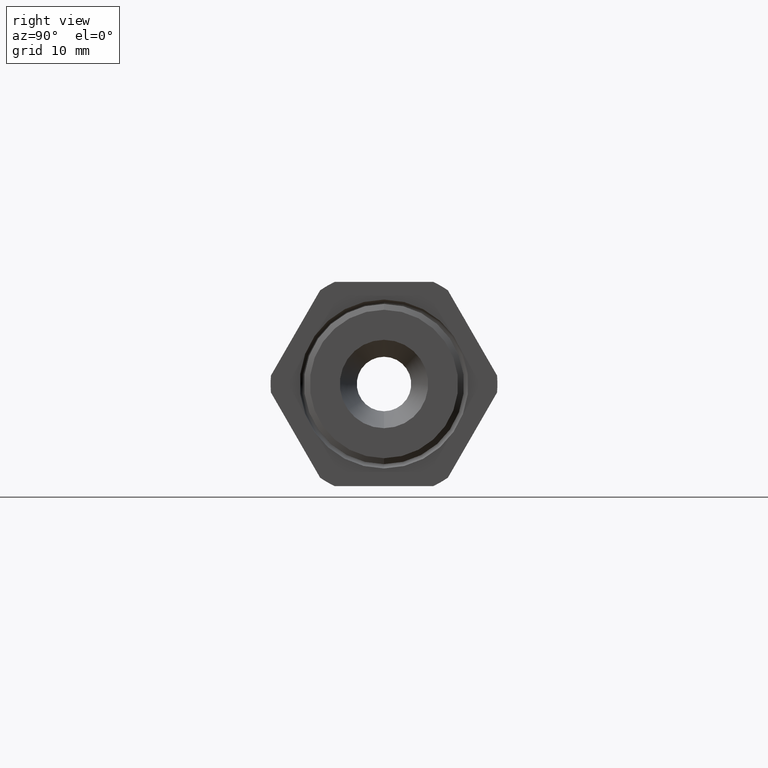
[diagram: clean part render]
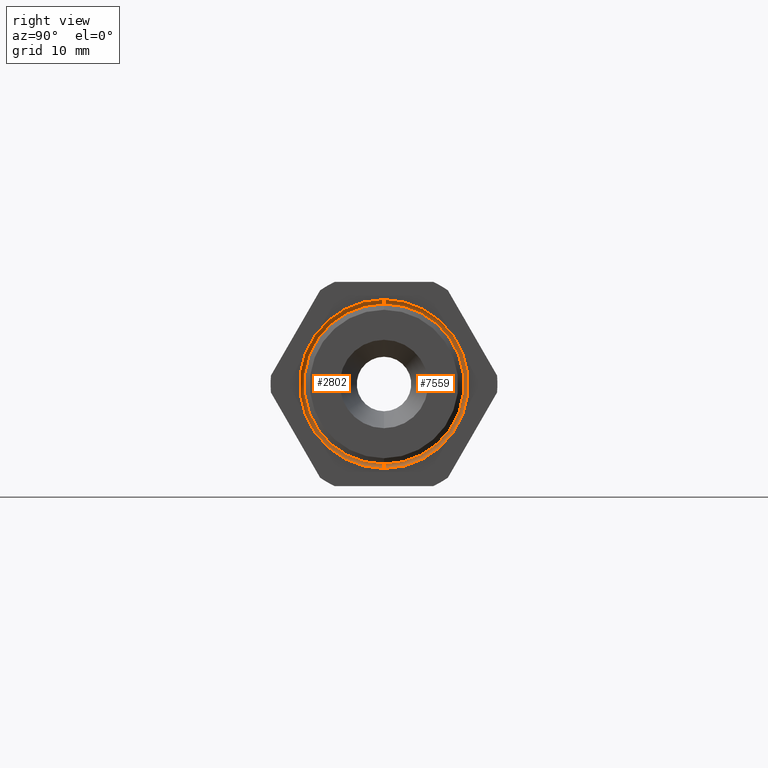
[diagram: same view with one multi-face feature highlighted, each face labeled with its STEP entity id]
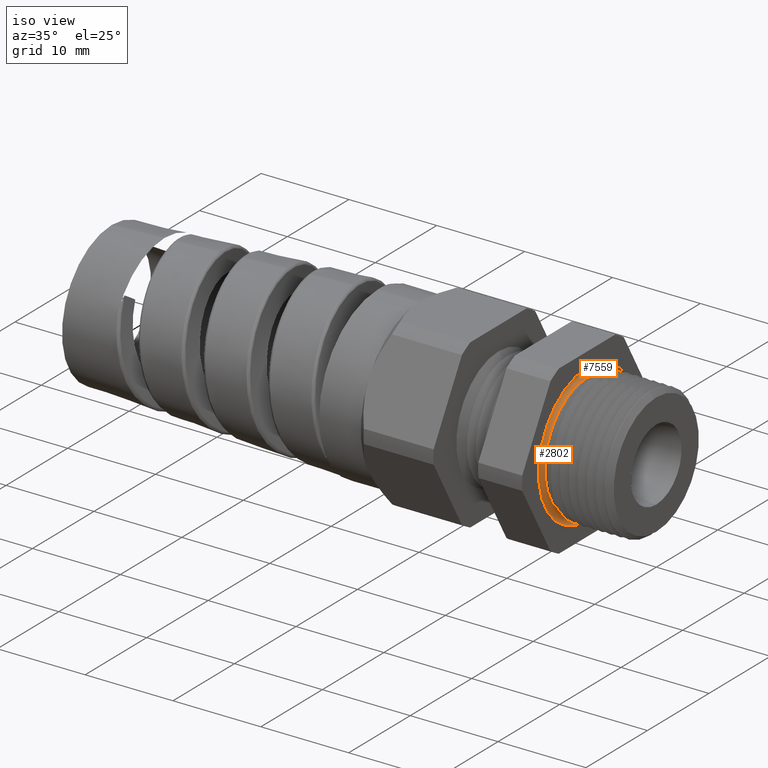
[diagram: same view with one multi-face feature highlighted, each face labeled with its STEP entity id]
A machine part, right view. The highlighted faces form ONE feature: a constant-radius fillet chain: 2 tangent blend faces with common blend radius 0.508 mm. The faces share edges in the B-rep.
A second angle (iso view) of the same feature is appended — it is thin or edge-on in the first view.
Their STEP definitions:
[1] entity #2802 (Torus):
#1498 = DIRECTION ( 'NONE',  ( 0.0000000000000000000, 0.0000000000000000000, -1.000000000000000000 ) ) ;
#1499 = DIRECTION ( 'NONE',  ( 0.0000000000000000000, -1.000000000000000000, 0.0000000000000000000 ) ) ;
#1500 = CARTESIAN_POINT ( 'NONE',  ( -0.3099999999999998300, 0.0000000000000000000, -0.2899999999999999800 ) ) ;
#1501 = AXIS2_PLACEMENT_3D ( 'NONE', #1500, #1499, #1498 ) ;
#1502 = CIRCLE ( 'NONE', #1501, 0.01999999999999999000 ) ;
#1540 = DIRECTION ( 'NONE',  ( 0.0000000000000000000, 0.0000000000000000000, -1.000000000000000000 ) ) ;
#1541 = DIRECTION ( 'NONE',  ( 1.000000000000000000, 0.0000000000000000000, 0.0000000000000000000 ) ) ;
#1542 = CARTESIAN_POINT ( 'NONE',  ( -0.3099999999999998300, 0.0000000000000000000, 0.0000000000000000000 ) ) ;
#1543 = AXIS2_PLACEMENT_3D ( 'NONE', #1542, #1541, #1540 ) ;
#1545 = TOROIDAL_SURFACE ( 'NONE', #1543, 0.2899999999999999800, 0.02000000000000000700 ) ;
#1546 = FACE_OUTER_BOUND ( 'NONE', #2801, .T. ) ;
#1589 = DIRECTION ( 'NONE',  ( 0.0000000000000000000, 0.0000000000000000000, -1.000000000000000000 ) ) ;
#1590 = DIRECTION ( 'NONE',  ( 1.000000000000000000, 0.0000000000000000000, 0.0000000000000000000 ) ) ;
#1591 = CARTESIAN_POINT ( 'NONE',  ( -0.3099999999999998300, 0.0000000000000000000, 0.0000000000000000000 ) ) ;
#1592 = AXIS2_PLACEMENT_3D ( 'NONE', #1591, #1590, #1589 ) ;
#1593 = CIRCLE ( 'NONE', #1592, 0.2699999999999999600 ) ;
#1890 = CARTESIAN_POINT ( 'NONE',  ( -0.3099999999999998300, 0.0000000000000000000, -0.2699999999999999600 ) ) ;
#1892 = CARTESIAN_POINT ( 'NONE',  ( -0.3099999999999998300, 3.306546357697853700E-017, 0.2699999999999999600 ) ) ;
#2791 = EDGE_CURVE ( 'NONE', #3032, #7356, #1502, .T. ) ;
#2794 = ORIENTED_EDGE ( 'NONE', *, *, #2791, .F. ) ;
#2801 = EDGE_LOOP ( 'NONE', ( #7516, #7519, #7400, #2794 ) ) ;
#2802 = ADVANCED_FACE ( 'NONE', ( #1546 ), #1545, .F. ) ;
#2810 = EDGE_CURVE ( 'NONE', #3028, #3032, #1593, .T. ) ;
#3028 = VERTEX_POINT ( 'NONE', #1892 ) ;
#3032 = VERTEX_POINT ( 'NONE', #1890 ) ;
#3361 = CARTESIAN_POINT ( 'NONE',  ( -0.3100000000000000000, 0.0000000000000000000, -0.3100000000000000000 ) ) ;
#3366 = DIRECTION ( 'NONE',  ( 0.0000000000000000000, 1.224646799147354900E-016, 1.000000000000000000 ) ) ;
#3367 = DIRECTION ( 'NONE',  ( 0.0000000000000000000, 1.000000000000000000, -1.224646799147353200E-016 ) ) ;
#3368 = AXIS2_PLACEMENT_3D ( 'NONE', #3375, #3367, #3366 ) ;
#3369 = CIRCLE ( 'NONE', #3368, 0.01999999999999999000 ) ;
#3370 = DIRECTION ( 'NONE',  ( 0.0000000000000000000, 0.0000000000000000000, -1.000000000000000000 ) ) ;
#3371 = DIRECTION ( 'NONE',  ( -1.000000000000000000, 0.0000000000000000000, 0.0000000000000000000 ) ) ;
#3372 = CARTESIAN_POINT ( 'NONE',  ( -0.3100000000000000000, 0.0000000000000000000, 0.0000000000000000000 ) ) ;
#3373 = AXIS2_PLACEMENT_3D ( 'NONE', #3372, #3371, #3370 ) ;
#3374 = CIRCLE ( 'NONE', #3373, 0.3100000000000000000 ) ;
#3375 = CARTESIAN_POINT ( 'NONE',  ( -0.3099999999999998300, 3.551475717527323800E-017, 0.2899999999999999800 ) ) ;
#3431 = CARTESIAN_POINT ( 'NONE',  ( -0.3100000000000000000, 3.796405077356794500E-017, 0.3100000000000000000 ) ) ;
#7351 = EDGE_CURVE ( 'NONE', #7356, #7360, #3374, .T. ) ;
#7352 = EDGE_CURVE ( 'NONE', #3028, #7360, #3369, .T. ) ;
#7356 = VERTEX_POINT ( 'NONE', #3361 ) ;
#7360 = VERTEX_POINT ( 'NONE', #3431 ) ;
#7400 = ORIENTED_EDGE ( 'NONE', *, *, #7351, .F. ) ;
#7516 = ORIENTED_EDGE ( 'NONE', *, *, #2810, .F. ) ;
#7519 = ORIENTED_EDGE ( 'NONE', *, *, #7352, .T. ) ;
[2] entity #7559 (Torus):
#1498 = DIRECTION ( 'NONE',  ( 0.0000000000000000000, 0.0000000000000000000, -1.000000000000000000 ) ) ;
#1499 = DIRECTION ( 'NONE',  ( 0.0000000000000000000, -1.000000000000000000, 0.0000000000000000000 ) ) ;
#1500 = CARTESIAN_POINT ( 'NONE',  ( -0.3099999999999998300, 0.0000000000000000000, -0.2899999999999999800 ) ) ;
#1501 = AXIS2_PLACEMENT_3D ( 'NONE', #1500, #1499, #1498 ) ;
#1502 = CIRCLE ( 'NONE', #1501, 0.01999999999999999000 ) ;
#1862 = CIRCLE ( 'NONE', #1897, 0.2699999999999999600 ) ;
#1890 = CARTESIAN_POINT ( 'NONE',  ( -0.3099999999999998300, 0.0000000000000000000, -0.2699999999999999600 ) ) ;
#1892 = CARTESIAN_POINT ( 'NONE',  ( -0.3099999999999998300, 3.306546357697853700E-017, 0.2699999999999999600 ) ) ;
#1894 = DIRECTION ( 'NONE',  ( 0.0000000000000000000, 0.0000000000000000000, -1.000000000000000000 ) ) ;
#1895 = DIRECTION ( 'NONE',  ( 1.000000000000000000, 0.0000000000000000000, 0.0000000000000000000 ) ) ;
#1896 = CARTESIAN_POINT ( 'NONE',  ( -0.3099999999999998300, 0.0000000000000000000, 0.0000000000000000000 ) ) ;
#1897 = AXIS2_PLACEMENT_3D ( 'NONE', #1896, #1895, #1894 ) ;
#2228 = DIRECTION ( 'NONE',  ( 0.0000000000000000000, 0.0000000000000000000, -1.000000000000000000 ) ) ;
#2229 = DIRECTION ( 'NONE',  ( -1.000000000000000000, 0.0000000000000000000, 0.0000000000000000000 ) ) ;
#2230 = AXIS2_PLACEMENT_3D ( 'NONE', #2235, #2229, #2228 ) ;
#2231 = CIRCLE ( 'NONE', #2230, 0.3100000000000000000 ) ;
#2235 = CARTESIAN_POINT ( 'NONE',  ( -0.3100000000000000000, 0.0000000000000000000, 0.0000000000000000000 ) ) ;
#2791 = EDGE_CURVE ( 'NONE', #3032, #7356, #1502, .T. ) ;
#3023 = EDGE_CURVE ( 'NONE', #3032, #3028, #1862, .T. ) ;
#3028 = VERTEX_POINT ( 'NONE', #1892 ) ;
#3032 = VERTEX_POINT ( 'NONE', #1890 ) ;
#3144 = EDGE_CURVE ( 'NONE', #7360, #7356, #2231, .T. ) ;
#3361 = CARTESIAN_POINT ( 'NONE',  ( -0.3100000000000000000, 0.0000000000000000000, -0.3100000000000000000 ) ) ;
#3366 = DIRECTION ( 'NONE',  ( 0.0000000000000000000, 1.224646799147354900E-016, 1.000000000000000000 ) ) ;
#3367 = DIRECTION ( 'NONE',  ( 0.0000000000000000000, 1.000000000000000000, -1.224646799147353200E-016 ) ) ;
#3368 = AXIS2_PLACEMENT_3D ( 'NONE', #3375, #3367, #3366 ) ;
#3369 = CIRCLE ( 'NONE', #3368, 0.01999999999999999000 ) ;
#3375 = CARTESIAN_POINT ( 'NONE',  ( -0.3099999999999998300, 3.551475717527323800E-017, 0.2899999999999999800 ) ) ;
#3431 = CARTESIAN_POINT ( 'NONE',  ( -0.3100000000000000000, 3.796405077356794500E-017, 0.3100000000000000000 ) ) ;
#4066 = DIRECTION ( 'NONE',  ( 0.0000000000000000000, 0.0000000000000000000, -1.000000000000000000 ) ) ;
#4067 = DIRECTION ( 'NONE',  ( 1.000000000000000000, 0.0000000000000000000, 0.0000000000000000000 ) ) ;
#4068 = AXIS2_PLACEMENT_3D ( 'NONE', #4070, #4067, #4066 ) ;
#4069 = TOROIDAL_SURFACE ( 'NONE', #4068, 0.2899999999999999800, 0.02000000000000000700 ) ;
#4070 = CARTESIAN_POINT ( 'NONE',  ( -0.3099999999999998300, 0.0000000000000000000, 0.0000000000000000000 ) ) ;
#4071 = FACE_OUTER_BOUND ( 'NONE', #7555, .T. ) ;
#7352 = EDGE_CURVE ( 'NONE', #3028, #7360, #3369, .T. ) ;
#7356 = VERTEX_POINT ( 'NONE', #3361 ) ;
#7360 = VERTEX_POINT ( 'NONE', #3431 ) ;
#7546 = ORIENTED_EDGE ( 'NONE', *, *, #7352, .F. ) ;
#7548 = ORIENTED_EDGE ( 'NONE', *, *, #3144, .F. ) ;
#7549 = ORIENTED_EDGE ( 'NONE', *, *, #2791, .T. ) ;
#7551 = ORIENTED_EDGE ( 'NONE', *, *, #3023, .F. ) ;
#7555 = EDGE_LOOP ( 'NONE', ( #7551, #7549, #7548, #7546 ) ) ;
#7559 = ADVANCED_FACE ( 'NONE', ( #4071 ), #4069, .F. ) ;